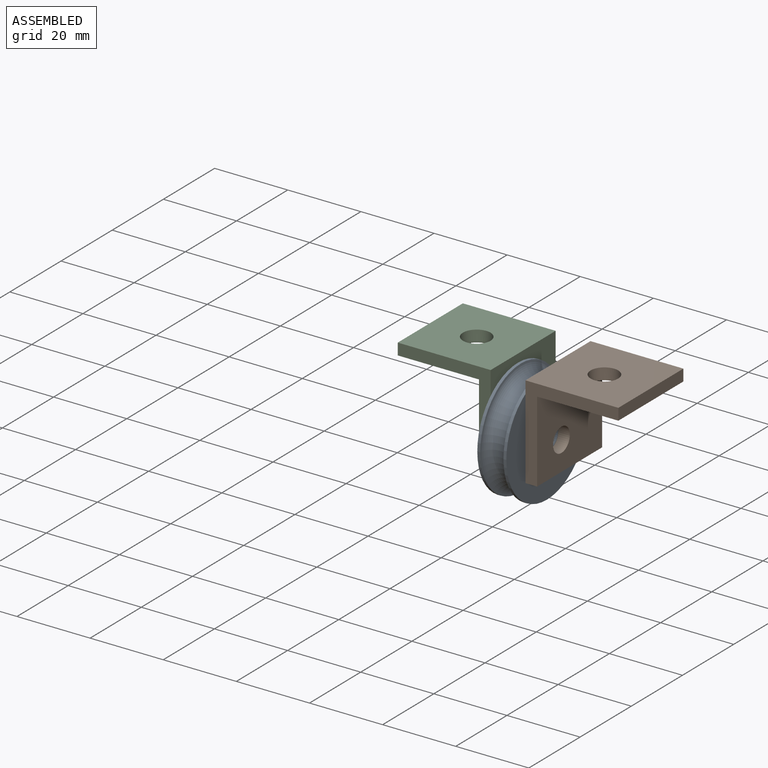
[diagram: assembled view]
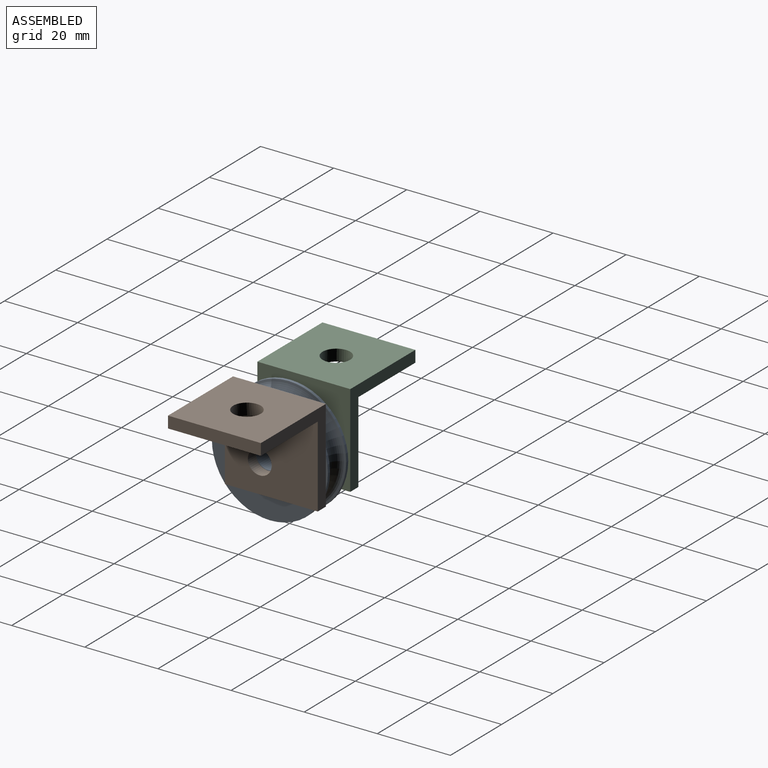
[diagram: assembled view, second angle]
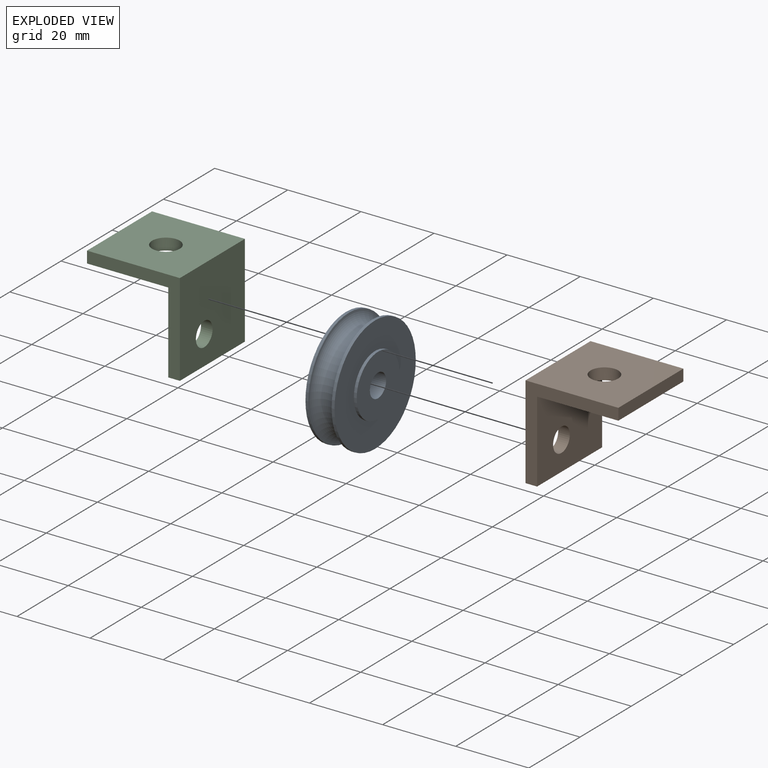
[diagram: exploded view]
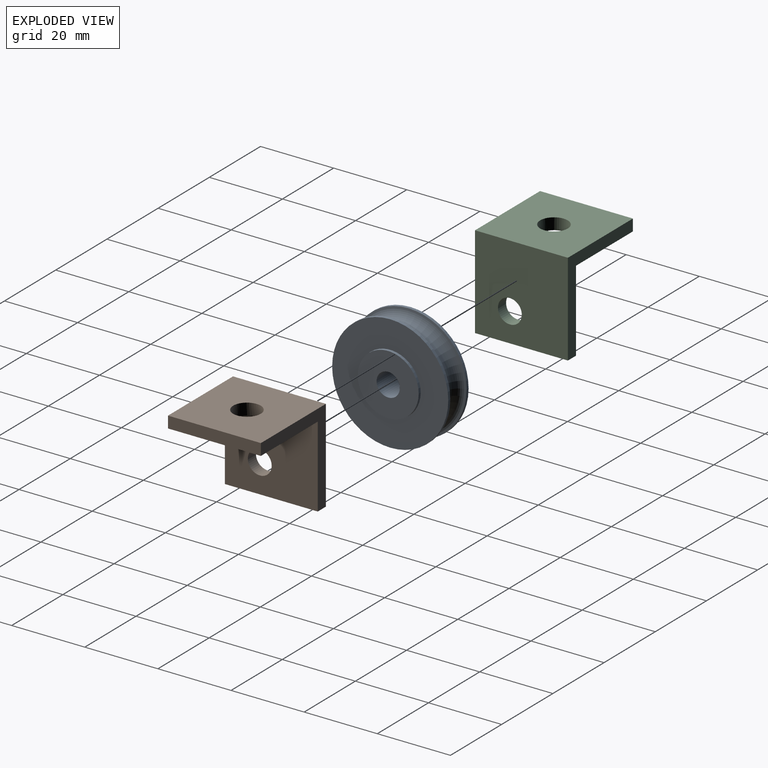
[diagram: exploded view, second angle]
ASSEMBLY  parts=3 mates=2
PART A: 10 faces, bbox 39.2x9.5x39.2 mm
  f0: cylinder r=15.88mm len=31.75mm, axis (0,-1,0), area 79.2mm2, adj f1,f9
  f1: torus R=15.88mm, axis (0,-1,0), area 868.2mm2, adj f0,f2
  f2: cylinder r=15.88mm len=31.75mm, axis (0,-1,0), area 79.2mm2, adj f1,f3
  f3: plane 31.75x31.75mm, normal (0,1,0), area 573.5mm2, adj f2,f4
  f4: cylinder r=8.33mm len=16.67mm, axis (0,-1,0), area 41.6mm2, adj f3,f5
  f5: plane 16.67x16.67mm, normal (0,1,0), area 186.6mm2, adj f4,f6
  f6: cylinder r=3.17mm len=9.53mm, axis (0,-1,0), area 190mm2, adj f5,f7
  f7: plane 16.67x16.67mm, normal (0,-1,0), area 186.6mm2, adj f6,f8
  f8: cylinder r=8.33mm len=16.67mm, axis (0,-1,0), area 41.6mm2, adj f7,f9
  f9: plane 31.75x31.75mm, normal (0,-1,0), area 573.5mm2, adj f0,f8
PART B: 10 faces, bbox 25.4x25.4x25.4 mm
  f0: plane 25.4x25.4mm, normal (0,1,0), area 611.7mm2, adj f1,f5,f6,f7,f8
  f1: plane 25.4x3.18mm, normal (0,0,1), area 80.6mm2, adj f0,f2,f6,f7
  f2: plane 25.4x22.23mm, normal (0,-1,0), area 531mm2, adj f1,f3,f6,f7,f8
  f3: plane 25.4x22.23mm, normal (0,0,1), area 519.8mm2, adj f2,f4,f6,f7,f9
  f4: plane 25.4x3.18mm, normal (0,-1,0), area 80.6mm2, adj f3,f5,f6,f7
  f5: plane 25.4x25.4mm, normal (0,0,-1), area 600.5mm2, adj f0,f4,f6,f7,f9
  f6: plane 25.4x25.4mm, normal (1,0,0), area 151.2mm2, adj f0,f1,f2,f3,f4,f5
  f7: plane 25.4x25.4mm, normal (-1,0,0), area 151.2mm2, adj f0,f1,f2,f3,f4,f5
  f8: cylinder r=3.26mm len=6.53mm, axis (0,1,0), area 65.1mm2, adj f0,f2
  f9: cylinder r=3.77mm len=7.54mm, axis (0,0,1), area 75.2mm2, adj f3,f5
PART C: 10 faces, bbox 25.4x25.4x25.4 mm
  f0: plane 25.4x25.4mm, normal (0,-1,0), area 611.7mm2, adj f1,f5,f6,f7,f8
  f1: plane 25.4x3.18mm, normal (0,0,1), area 80.6mm2, adj f0,f2,f6,f7
  f2: plane 25.4x22.23mm, normal (0,1,0), area 531mm2, adj f1,f3,f6,f7,f8
  f3: plane 25.4x22.23mm, normal (0,0,1), area 519.8mm2, adj f2,f4,f6,f7,f9
  f4: plane 25.4x3.18mm, normal (0,1,0), area 80.6mm2, adj f3,f5,f6,f7
  f5: plane 25.4x25.4mm, normal (0,0,-1), area 600.5mm2, adj f0,f4,f6,f7,f9
  f6: plane 25.4x25.4mm, normal (1,0,0), area 151.2mm2, adj f0,f1,f2,f3,f4,f5
  f7: plane 25.4x25.4mm, normal (-1,0,0), area 151.2mm2, adj f0,f1,f2,f3,f4,f5
  f8: cylinder r=3.26mm len=6.53mm, axis (0,-1,0), area 65.1mm2, adj f0,f2
  f9: cylinder r=3.77mm len=7.54mm, axis (0,0,1), area 75.2mm2, adj f3,f5
PLACE A rot(axis=(-0.71,0.71,0),180deg) t=(19.19,-3.17,-14.29)mm
PLACE B rot(axis=(-0.71,0.71,0),180deg) t=(23.95,12.7,3.18)mm
PLACE C rot(axis=(-0.71,0.71,0),180deg) t=(14.42,12.7,3.18)mm
MATE fastened C.f8 <-> A.f1  axis (1,0,0) through (14.42,-3.17,-14.29)mm
MATE fastened B.f8 <-> A.f1  axis (-1,0,0) through (23.95,-3.17,-14.29)mm
